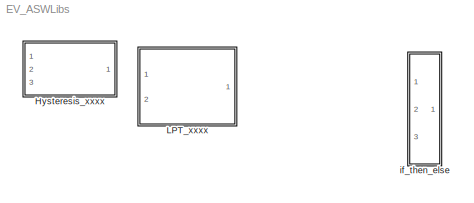
MODEL EV_ASWLibs
KIND library
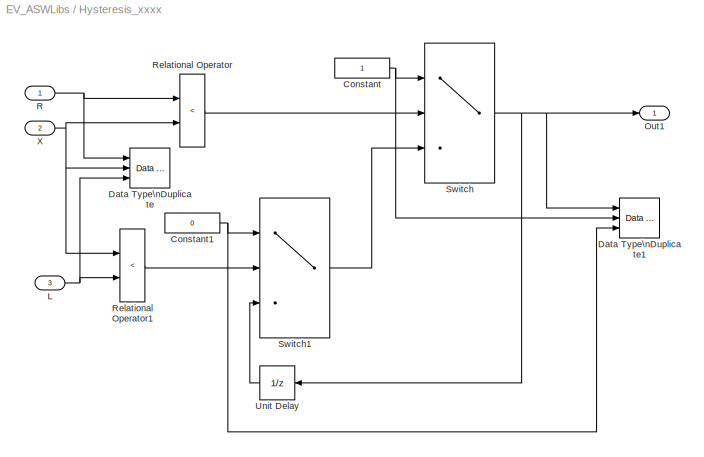
BLOCK [SubSystem] Hysteresis_xxxx
  FunctionWithSeparateData = off
  MaskDescription = Verson: V0.1\nAuthorHXL\nDate:2015-6-29\nDescription
  MaskDisplay = plot([.15 .75 .75 .75 .9],[.15 .15 .15 .85 .85]);\nplot([.3 .3 .75],[.15 .85 .85]);\nplot([.25 .3 .35],[.6 .4 .6]);\nplot([.7 .75 .8],[.4 .6 .4]);
  MaskHideContents = off
  MaskIconFrame = on
  MaskIconOpaque = off
  MaskIconRotate = none
  MaskIconUnits = normalized
  MaskPortRotate = default
  MinAlgLoopOccurrences = off
  Opaque = off
  Ports = [3, 1]
  PropExecContextOutsideSubsystem = off
  RTWSystemCode = Auto
  RequestExecContextInheritance = off
  TreatAsAtomicUnit = on
BLOCK [Constant] Hysteresis_xxxx/Constant
  OutDataTypeMode = boolean
  OutDataTypeStr = boolean
BLOCK [Constant] Hysteresis_xxxx/Constant1
  OutDataTypeMode = boolean
  OutDataTypeStr = boolean
  Value = 0
BLOCK [Reference] Hysteresis_xxxx/Data Type\nDuplicate  REF=simulink/Signal\nAttributes/Data Type\nDuplicate
  NumInputPorts = 3
  Ports = [3]
  SourceBlock = simulink/Signal\nAttributes/Data Type\nDuplicate
  SourceType = Data Type Duplicate
BLOCK [Reference] Hysteresis_xxxx/Data Type\nDuplicate1  REF=simulink/Signal\nAttributes/Data Type\nDuplicate
  NumInputPorts = 3
  Ports = [3]
  SourceBlock = simulink/Signal\nAttributes/Data Type\nDuplicate
  SourceType = Data Type Duplicate
BLOCK [Inport] Hysteresis_xxxx/L
  IconDisplay = Port number
  Port = 3
BLOCK [Outport] Hysteresis_xxxx/Out1
  IconDisplay = Port number
BLOCK [Inport] Hysteresis_xxxx/R
  IconDisplay = Port number
BLOCK [RelationalOperator] Hysteresis_xxxx/Relational Operator
  InputSameDT = off
  LogicOutDataTypeMode = boolean
  Operator = <
  OutDataTypeStr = boolean
BLOCK [RelationalOperator] Hysteresis_xxxx/Relational Operator1
  InputSameDT = off
  LogicOutDataTypeMode = boolean
  Operator = <
  OutDataTypeStr = boolean
BLOCK [Switch] Hysteresis_xxxx/Switch
  Criteria = u2 ~= 0
  InputSameDT = off
  SaturateOnIntegerOverflow = off
BLOCK [Switch] Hysteresis_xxxx/Switch1
  Criteria = u2 ~= 0
  InputSameDT = off
  SaturateOnIntegerOverflow = off
BLOCK [UnitDelay] Hysteresis_xxxx/Unit Delay
  SampleTime = -1
BLOCK [Inport] Hysteresis_xxxx/X
  IconDisplay = Port number
  Port = 2
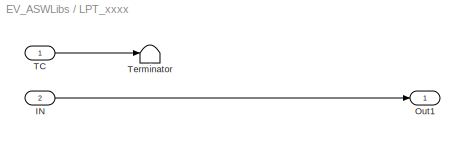
BLOCK [SubSystem] LPT_xxxx
  FunctionWithSeparateData = off
  MaskDescription = Verson: V0.1\nAuthorHXL\nDate:2015-6-29\nDescription
  MaskDisplay = patch([0 0 1 1], [0 1 1 0], [136/255 136/255 136/255])\nplot([0 0.30 0.45 0.55 0.63 0.68 0.71 0.74 0.76 0.78  0.795  0.805  0.815 0.82 0.828 0.831 0.832 0.832 0.832 0.832 0.832]);\n%plot([0:0.1:1],[0 0 0 0.4 0.6 0.7 0.75 0.8 0.825 0.83 0.832]);\nfprintf('PT1')\nport_label('input',1,'TC');\nport_label('input',2,'IN');\n
  MaskHideContents = off
  MaskIconFrame = on
  MaskIconOpaque = on
  MaskIconRotate = none
  MaskIconUnits = normalized
  MaskPortRotate = default
  MinAlgLoopOccurrences = off
  Opaque = off
  Ports = [2, 1]
  PropExecContextOutsideSubsystem = off
  RTWFcnNameOpts = Use subsystem name
  RTWSystemCode = Reusable function
  RequestExecContextInheritance = off
  TreatAsAtomicUnit = on
BLOCK [Inport] LPT_xxxx/IN
  IconDisplay = Port number
  Port = 2
BLOCK [Outport] LPT_xxxx/Out1
  IconDisplay = Port number
BLOCK [Inport] LPT_xxxx/TC
  IconDisplay = Port number
BLOCK [Terminator] LPT_xxxx/Terminator
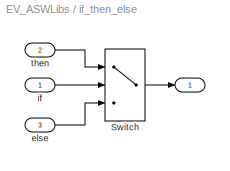
BLOCK [SubSystem] if_then_else
  FunctionWithSeparateData = off
  MaskDescription = if then else
  MaskDisplay = %plot([0.2 0.8],[0.9 0.9])\n%plot([0.3 0.7 1],[0.1 0.5 0.5])\n%plot([0.8 0.8],[0.55 0.9])\n%plot([0.75 0.8 0.85],[0.6 0.55 0.6])\npatch([0 0 1 1], [0 1 1 0], [136/255 136/255 136/255])\nport_label('input',1,'if')\nport_label('input',2,'then')\nport_label('input',3,'else')\n
  MaskHideContents = off
  MaskIconFrame = on
  MaskIconOpaque = off
  MaskIconRotate = none
  MaskIconUnits = normalized
  MaskPortRotate = default
  MaskSelfModifiable = on
  MinAlgLoopOccurrences = off
  Opaque = off
  Ports = [3, 1]
  PropExecContextOutsideSubsystem = off
  RTWFcnNameOpts = Use subsystem name
  RTWFileNameOpts = Use function name
  RTWSystemCode = Reusable function
  RequestExecContextInheritance = off
BLOCK [Outport] if_then_else/ 
  IconDisplay = Port number
BLOCK [Switch] if_then_else/Switch
  Criteria = u2 ~= 0
  InputSameDT = off
  OutDataTypeMode = Inherit via back propagation
  OutDataTypeStr = Inherit: Inherit via back propagation
  SaturateOnIntegerOverflow = off
  Threshold = 1
BLOCK [Inport] if_then_else/else
  IconDisplay = Port number
  Port = 3
BLOCK [Inport] if_then_else/if    
  IconDisplay = Port number
BLOCK [Inport] if_then_else/then
  IconDisplay = Port number
  Port = 2
NET Hysteresis_xxxx/Constant1:1 -> Hysteresis_xxxx/Data Type\nDuplicate1:3, Hysteresis_xxxx/Switch1:1
NET Hysteresis_xxxx/Constant:1 -> Hysteresis_xxxx/Data Type\nDuplicate1:2, Hysteresis_xxxx/Switch:1
NET Hysteresis_xxxx/L:1 -> Hysteresis_xxxx/Data Type\nDuplicate:3, Hysteresis_xxxx/Relational Operator1:2
NET Hysteresis_xxxx/R:1 -> Hysteresis_xxxx/Data Type\nDuplicate:1, Hysteresis_xxxx/Relational Operator:1
LINE Hysteresis_xxxx/Relational Operator1:1 -> Hysteresis_xxxx/Switch1:2
LINE Hysteresis_xxxx/Relational Operator:1 -> Hysteresis_xxxx/Switch:2
LINE Hysteresis_xxxx/Switch1:1 -> Hysteresis_xxxx/Switch:3
NET Hysteresis_xxxx/Switch:1 -> Hysteresis_xxxx/Data Type\nDuplicate1:1, Hysteresis_xxxx/Out1:1, Hysteresis_xxxx/Unit Delay:1
LINE Hysteresis_xxxx/Unit Delay:1 -> Hysteresis_xxxx/Switch1:3
NET Hysteresis_xxxx/X:1 -> Hysteresis_xxxx/Data Type\nDuplicate:2, Hysteresis_xxxx/Relational Operator1:1, Hysteresis_xxxx/Relational Operator:2
LINE LPT_xxxx/IN:1 -> LPT_xxxx/Out1:1
LINE LPT_xxxx/TC:1 -> LPT_xxxx/Terminator:1
LINE if_then_else/Switch:1 -> if_then_else/ :1
LINE if_then_else/else:1 -> if_then_else/Switch:3
LINE if_then_else/if    :1 -> if_then_else/Switch:2
LINE if_then_else/then:1 -> if_then_else/Switch:1
note: NET lines group one-source signal fan-out (src -> all destinations, sorted); 1:1 wires keep LINE
